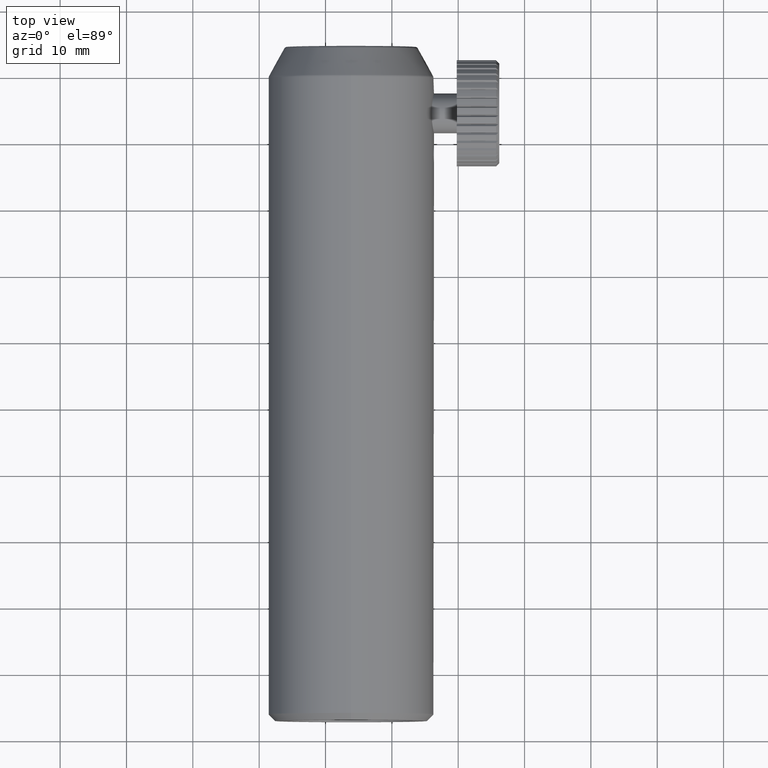
[diagram: clean part render]
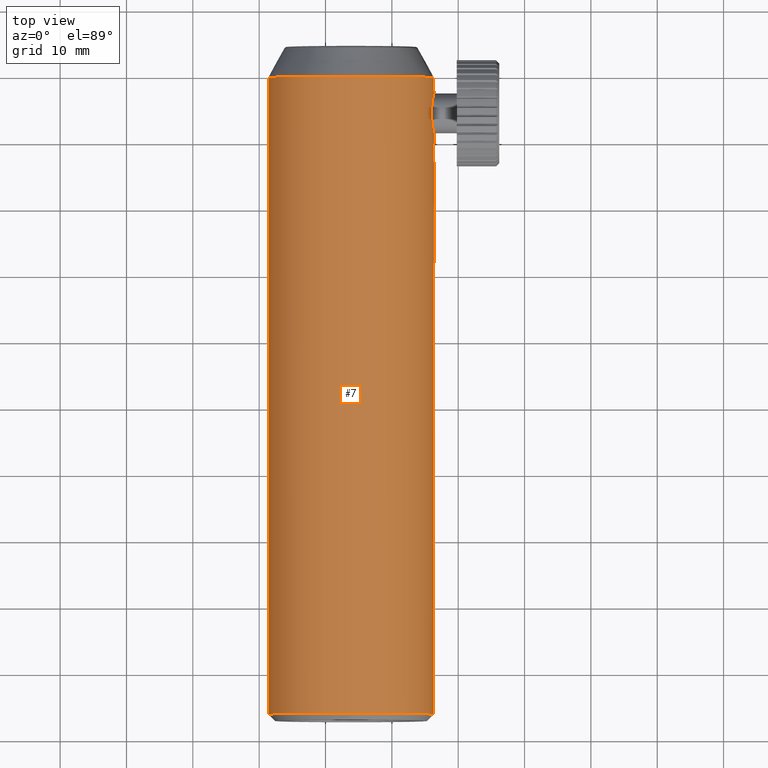
[diagram: same view with one face highlighted and labeled with its STEP entity id]
A machine part, top view. The second image highlights one B-rep face of the part: STEP entity #7.
In plain terms, the highlighted cylindrical surface (bore or boss wall) has radius 12.5 mm, axis along (-0, -1, -0).
Its self-contained STEP definition (entity closure, byte-faithful):
#7 = ADVANCED_FACE ( 'NONE', ( #4290, #4288, #4291, #4286 ), #4295, .T. ) ;
#218 = CARTESIAN_POINT ( 'NONE',  ( -6.149801035848844900, 89.85799238852061400, 12.50000000000000000 ) ) ;
#219 = CARTESIAN_POINT ( 'NONE',  ( -6.149801035848844900, -6.112444597380676500, 12.50000000000000000 ) ) ;
#220 = CARTESIAN_POINT ( 'NONE',  ( 6.259872610142013000, 78.48755540261929300, -1.500000000000001800 ) ) ;
#221 = CARTESIAN_POINT ( 'NONE',  ( 5.984860063662751800, 84.48755540261932100, 3.000000000000005300 ) ) ;
#292 = CARTESIAN_POINT ( 'NONE',  ( -6.149801035848844900, 89.85799238852061400, 5.421010862427522200E-016 ) ) ;
#293 = DIRECTION ( 'NONE',  ( 0.0000000000000000000, -1.000000000000000000, 0.0000000000000000000 ) ) ;
#294 = DIRECTION ( 'NONE',  ( 0.0000000000000000000, 0.0000000000000000000, 1.000000000000000000 ) ) ;
#295 = CARTESIAN_POINT ( 'NONE',  ( 6.259872610142013000, 78.48755540261929300, -1.500000000000001800 ) ) ;
#296 = CARTESIAN_POINT ( 'NONE',  ( -6.149801035848844900, -6.112444597380676500, 5.421010862427522200E-016 ) ) ;
#297 = DIRECTION ( 'NONE',  ( -0.0000000000000000000, 1.000000000000000000, -0.0000000000000000000 ) ) ;
#298 = DIRECTION ( 'NONE',  ( 0.0000000000000000000, 0.0000000000000000000, 1.000000000000000000 ) ) ;
#299 = CARTESIAN_POINT ( 'NONE',  ( 6.259872610142012100, 78.38836244564953400, -1.500000000000001600 ) ) ;
#300 = CARTESIAN_POINT ( 'NONE',  ( 6.261061172023147500, 78.29084510107892900, -1.490257802948910000 ) ) ;
#301 = CARTESIAN_POINT ( 'NONE',  ( 6.265583224313307800, 78.09901901123629400, -1.452102866381464800 ) ) ;
#302 = CARTESIAN_POINT ( 'NONE',  ( 6.268970210110914800, 78.00370944680059900, -1.423220524195887300 ) ) ;
#303 = CARTESIAN_POINT ( 'NONE',  ( 6.277370815684313300, 77.82210226600993500, -1.347900475714468100 ) ) ;
#304 = CARTESIAN_POINT ( 'NONE',  ( 6.282344823719955500, 77.73598244525437900, -1.301822226657947800 ) ) ;
#305 = CARTESIAN_POINT ( 'NONE',  ( 6.293261492200886500, 77.57299741451579700, -1.192973891775913000 ) ) ;
#306 = CARTESIAN_POINT ( 'NONE',  ( 6.299240806496861500, 77.49589780356458800, -1.129677166767513600 ) ) ;
#307 = CARTESIAN_POINT ( 'NONE',  ( 6.316899693580494600, 77.28855787038287400, -0.9222939321095640100 ) ) ;
#308 = CARTESIAN_POINT ( 'NONE',  ( 6.328679438238382600, 77.17682782665579600, -0.7550871261758829200 ) ) ;
#309 = CARTESIAN_POINT ( 'NONE',  ( 6.345287980852801500, 77.02715087937481500, -0.3941852039266134900 ) ) ;
#310 = CARTESIAN_POINT ( 'NONE',  ( 6.350185932587506500, 76.98766399899933800, -0.1966721861268270200 ) ) ;
#311 = CARTESIAN_POINT ( 'NONE',  ( 6.350205438598430300, 76.98750144888387600, 0.09709108478564433500 ) ) ;
#312 = CARTESIAN_POINT ( 'NONE',  ( 6.349023913998093100, 76.99725785619678200, 0.1965672230767508100 ) ) ;
#313 = CARTESIAN_POINT ( 'NONE',  ( 6.344515020274919900, 77.03555837773635100, 0.3890116833621168300 ) ) ;
#314 = CARTESIAN_POINT ( 'NONE',  ( 6.341212166069643900, 77.06389596024278900, 0.4825573475793975600 ) ) ;
#315 = CARTESIAN_POINT ( 'NONE',  ( 6.332867587298133900, 77.13907056671499200, 0.6642713669177133800 ) ) ;
#316 = CARTESIAN_POINT ( 'NONE',  ( 6.327824374716394500, 77.18599851873563000, 0.7519910857756627600 ) ) ;
#317 = CARTESIAN_POINT ( 'NONE',  ( 6.316972180214649200, 77.29451355240631500, 0.9144353770012350100 ) ) ;
#318 = CARTESIAN_POINT ( 'NONE',  ( 6.311112954035098500, 77.35652247587003700, 0.9902319564912679400 ) ) ;
#319 = CARTESIAN_POINT ( 'NONE',  ( 6.299193757832053800, 77.49643008703108600, 1.130250157198737800 ) ) ;
#320 = CARTESIAN_POINT ( 'NONE',  ( 6.293330031101859000, 77.57209426510992500, 1.192254079490199700 ) ) ;
#321 = CARTESIAN_POINT ( 'NONE',  ( 6.282441074698355400, 77.73442709997807800, 1.300898398842780000 ) ) ;
#322 = CARTESIAN_POINT ( 'NONE',  ( 6.277368967144909100, 77.82213790911129100, 1.347917362378355600 ) ) ;
#323 = CARTESIAN_POINT ( 'NONE',  ( 6.268969523861892800, 78.00372860293086300, 1.423226364416681400 ) ) ;
#324 = CARTESIAN_POINT ( 'NONE',  ( 6.265637506738246800, 78.09722246197037500, 1.451640783152932100 ) ) ;
#325 = CARTESIAN_POINT ( 'NONE',  ( 6.261079144605536900, 78.28958456286244400, 1.490110168569581500 ) ) ;
#326 = CARTESIAN_POINT ( 'NONE',  ( 6.259877047189084100, 78.38906249612182400, 1.499963291793313200 ) ) ;
#327 = CARTESIAN_POINT ( 'NONE',  ( 6.259863774041022600, 78.68285928330881500, 1.500073102091561600 ) ) ;
#328 = CARTESIAN_POINT ( 'NONE',  ( 6.264778266869466700, 78.88038538652520500, 1.460777251484217700 ) ) ;
#329 = CARTESIAN_POINT ( 'NONE',  ( 6.281447300722744500, 79.24152578551742500, 1.311378753992073600 ) ) ;
#330 = CARTESIAN_POINT ( 'NONE',  ( 6.293255431960084000, 79.40878978742775000, 1.199820136655038700 ) ) ;
#331 = CARTESIAN_POINT ( 'NONE',  ( 6.310919036325211500, 79.61640408590213300, 0.9926031121600045200 ) ) ;
#332 = CARTESIAN_POINT ( 'NONE',  ( 6.316892822264701800, 79.67977732552218100, 0.9155336314934242600 ) ) ;
#333 = CARTESIAN_POINT ( 'NONE',  ( 6.327782312873323700, 79.78871780056699900, 0.7527093449750811300 ) ) ;
#334 = CARTESIAN_POINT ( 'NONE',  ( 6.332740413405433700, 79.83486681279416100, 0.6666461557756452300 ) ) ;
#335 = CARTESIAN_POINT ( 'NONE',  ( 6.341113470749970600, 79.91035272296997500, 0.4850906288528175600 ) ) ;
#336 = CARTESIAN_POINT ( 'NONE',  ( 6.344487107921721300, 79.93931236001716900, 0.3898233760054308200 ) ) ;
#337 = CARTESIAN_POINT ( 'NONE',  ( 6.348997751691048700, 79.97763364727497000, 0.1980589625271933800 ) ) ;
#338 = CARTESIAN_POINT ( 'NONE',  ( 6.350187992601410000, 79.98746397300050100, 0.1005603776650985700 ) ) ;
#339 = CARTESIAN_POINT ( 'NONE',  ( 6.350209784851736000, 79.98764557516155100, -0.09781402405194571100 ) ) ;
#340 = CARTESIAN_POINT ( 'NONE',  ( 6.349040664557299400, 79.97799142635294300, -0.1953580908606927200 ) ) ;
#341 = CARTESIAN_POINT ( 'NONE',  ( 6.344568181894191000, 79.94000775581928100, -0.3872292424281549300 ) ) ;
#342 = CARTESIAN_POINT ( 'NONE',  ( 6.341211588201721500, 79.91120955874865200, -0.4825687799052017500 ) ) ;
#343 = CARTESIAN_POINT ( 'NONE',  ( 6.332868831318168500, 79.83605152599267300, -0.6642454281742906600 ) ) ;
#344 = CARTESIAN_POINT ( 'NONE',  ( 6.327921592742443500, 79.79004807493933500, -0.7504117923817327200 ) ) ;
#345 = CARTESIAN_POINT ( 'NONE',  ( 6.317042155983585900, 79.68133274162637700, -0.9135100899640404800 ) ) ;
#346 = CARTESIAN_POINT ( 'NONE',  ( 6.311074122915635500, 79.61810612920781700, -0.9906612363099380800 ) ) ;
#347 = CARTESIAN_POINT ( 'NONE',  ( 6.293415957238744700, 79.41091342059949900, -1.198177154138544900 ) ) ;
#348 = CARTESIAN_POINT ( 'NONE',  ( 6.281588345130294300, 79.24380284367747200, -1.310058265983520500 ) ) ;
#349 = CARTESIAN_POINT ( 'NONE',  ( 6.264865158017105500, 78.88303606675376000, -1.460054073202280200 ) ) ;
#350 = CARTESIAN_POINT ( 'NONE',  ( 6.259872610142016600, 78.68594131655882500, -1.500000000000002000 ) ) ;
#351 = CARTESIAN_POINT ( 'NONE',  ( 6.259872610142013000, 78.48755540261929300, -1.500000000000001800 ) ) ;
#353 = CARTESIAN_POINT ( 'NONE',  ( 5.984860063662751800, 84.48755540261932100, 3.000000000000005800 ) ) ;
#354 = CARTESIAN_POINT ( 'NONE',  ( 5.984860063662750000, 84.28857911025087900, 3.000000000000005300 ) ) ;
#355 = CARTESIAN_POINT ( 'NONE',  ( 5.989752526017962700, 84.09307894255638900, 2.980401679168928300 ) ) ;
#356 = CARTESIAN_POINT ( 'NONE',  ( 6.008314257206009800, 83.70869824284929500, 2.903754013585117600 ) ) ;
#357 = CARTESIAN_POINT ( 'NONE',  ( 6.022208951451666800, 83.51778198057893100, 2.845725346697516300 ) ) ;
#358 = CARTESIAN_POINT ( 'NONE',  ( 6.056485410008821900, 83.15486558218809400, 2.694912073046460900 ) ) ;
#359 = CARTESIAN_POINT ( 'NONE',  ( 6.076732470784564000, 82.98285469548604000, 2.602731912253473600 ) ) ;
#360 = CARTESIAN_POINT ( 'NONE',  ( 6.121049315360949100, 82.65731744787035500, 2.385071624523360500 ) ) ;
#361 = CARTESIAN_POINT ( 'NONE',  ( 6.145196051731773900, 82.50377700576680700, 2.258894687124602300 ) ) ;
#362 = CARTESIAN_POINT ( 'NONE',  ( 6.192657820890319800, 82.22819399405671000, 1.983246822974015400 ) ) ;
#363 = CARTESIAN_POINT ( 'NONE',  ( 6.216222680867878700, 82.10426247223668400, 1.832699956375967200 ) ) ;
#364 = CARTESIAN_POINT ( 'NONE',  ( 6.260366750444680900, 81.88490154288904000, 1.505014022706548700 ) ) ;
#365 = CARTESIAN_POINT ( 'NONE',  ( 6.280394049482387300, 81.79217271111147600, 1.331559699388170400 ) ) ;
#366 = CARTESIAN_POINT ( 'NONE',  ( 6.313753736929976800, 81.64228993726376900, 0.9708777051564082500 ) ) ;
#367 = CARTESIAN_POINT ( 'NONE',  ( 6.327283175884776500, 81.58427386506365100, 0.7810302027737270300 ) ) ;
#368 = CARTESIAN_POINT ( 'NONE',  ( 6.345511664687371900, 81.50690903919391400, 0.3934451933313346000 ) ) ;
#369 = CARTESIAN_POINT ( 'NONE',  ( 6.350169760273071300, 81.48767708546644400, 0.1983092448445306600 ) ) ;
#370 = CARTESIAN_POINT ( 'NONE',  ( 6.350227894398536000, 81.48743485990023300, -0.1946103889057414500 ) ) ;
#371 = CARTESIAN_POINT ( 'NONE',  ( 6.345469539736326300, 81.50708866395172000, -0.3942288005861714400 ) ) ;
#372 = CARTESIAN_POINT ( 'NONE',  ( 6.327357324523553000, 81.58395832777753800, -0.7795654908250736500 ) ) ;
#373 = CARTESIAN_POINT ( 'NONE',  ( 6.314085062698392600, 81.64082512991838300, -0.9669420786040929800 ) ) ;
#374 = CARTESIAN_POINT ( 'NONE',  ( 6.280469662609919000, 81.79180945670465500, -1.331091290622746800 ) ) ;
#375 = CARTESIAN_POINT ( 'NONE',  ( 6.260274096106014600, 81.88539461569391200, -1.505586124824016100 ) ) ;
#376 = CARTESIAN_POINT ( 'NONE',  ( 6.216629249376391700, 82.10220972964366100, -1.829796808580407500 ) ) ;
#377 = CARTESIAN_POINT ( 'NONE',  ( 6.192851693742148300, 82.22706036532390800, -1.982129260621104500 ) ) ;
#378 = CARTESIAN_POINT ( 'NONE',  ( 6.144959258371401700, 82.50515985614232800, -2.260261515125104200 ) ) ;
#379 = CARTESIAN_POINT ( 'NONE',  ( 6.121282089267389800, 82.65581524617881800, -2.383862308967640500 ) ) ;
#380 = CARTESIAN_POINT ( 'NONE',  ( 6.077088777362024400, 82.98003245367156900, -2.601047109767376900 ) ) ;
#381 = CARTESIAN_POINT ( 'NONE',  ( 6.056399963085020500, 83.15570083088955800, -2.695293317102767100 ) ) ;
#382 = CARTESIAN_POINT ( 'NONE',  ( 6.022210144152749600, 83.51783898018075500, -2.845714800451583800 ) ) ;
#383 = CARTESIAN_POINT ( 'NONE',  ( 6.008548842244810100, 83.70483425756113100, -2.902776904064428900 ) ) ;
#384 = CARTESIAN_POINT ( 'NONE',  ( 5.989808808624930600, 84.09093491799208700, -2.980177568009191500 ) ) ;
#385 = CARTESIAN_POINT ( 'NONE',  ( 5.984880675424948400, 84.29009652302583800, -2.999916627742443200 ) ) ;
#386 = CARTESIAN_POINT ( 'NONE',  ( 5.984819039754325900, 84.87866086162249200, -3.000165937091054500 ) ) ;
#387 = CARTESIAN_POINT ( 'NONE',  ( 6.005048413594751700, 85.27481667665027500, -2.921168117209807400 ) ) ;
#388 = CARTESIAN_POINT ( 'NONE',  ( 6.056125926075505800, 85.81684348033952900, -2.696524443998021200 ) ) ;
#389 = CARTESIAN_POINT ( 'NONE',  ( 6.076733931466963100, 85.99228431395909000, -2.602730281982853300 ) ) ;
#390 = CARTESIAN_POINT ( 'NONE',  ( 6.121097499158493000, 86.31812980593397800, -2.384829421845836800 ) ) ;
#391 = CARTESIAN_POINT ( 'NONE',  ( 6.144764863502360600, 86.46870238624696000, -2.261263662528855800 ) ) ;
#392 = CARTESIAN_POINT ( 'NONE',  ( 6.192399278233861700, 86.74554152086511700, -1.984881712349541700 ) ) ;
#393 = CARTESIAN_POINT ( 'NONE',  ( 6.216407018508646400, 86.87175418004700600, -1.831295662404106600 ) ) ;
#394 = CARTESIAN_POINT ( 'NONE',  ( 6.260084591274767800, 87.08881729733900600, -1.507144375468702800 ) ) ;
#395 = CARTESIAN_POINT ( 'NONE',  ( 6.280036911392144800, 87.18131626001157000, -1.335166770267808700 ) ) ;
#396 = CARTESIAN_POINT ( 'NONE',  ( 6.313817541215136900, 87.33312462452919100, -0.9704399335172661000 ) ) ;
#397 = CARTESIAN_POINT ( 'NONE',  ( 6.327235465345772500, 87.39062915574862700, -0.7813424471037036000 ) ) ;
#398 = CARTESIAN_POINT ( 'NONE',  ( 6.345358525535109700, 87.46755705168099800, -0.3973957817389944800 ) ) ;
#399 = CARTESIAN_POINT ( 'NONE',  ( 6.350172368952441600, 87.48744458927514200, -0.1996070343081345100 ) ) ;
#400 = CARTESIAN_POINT ( 'NONE',  ( 6.350225335574990000, 87.48766528356809100, 0.1962620762996985800 ) ) ;
#401 = CARTESIAN_POINT ( 'NONE',  ( 6.345554450857807000, 87.46837561566016500, 0.3914937937115275400 ) ) ;
#402 = CARTESIAN_POINT ( 'NONE',  ( 6.327535270105871100, 87.39191448771855200, 0.7766948163783223800 ) ) ;
#403 = CARTESIAN_POINT ( 'NONE',  ( 6.313972059075593000, 87.33378035254922600, 0.9681994951951574700 ) ) ;
#404 = CARTESIAN_POINT ( 'NONE',  ( 6.280543982403087500, 87.18363291942434000, 1.330252890046762100 ) ) ;
#405 = CARTESIAN_POINT ( 'NONE',  ( 6.260662446654436900, 87.09160013492582700, 1.502540360071170000 ) ) ;
#406 = CARTESIAN_POINT ( 'NONE',  ( 6.216672584633204900, 86.87316117964621800, 1.829634274414380100 ) ) ;
#407 = CARTESIAN_POINT ( 'NONE',  ( 6.192824846058875300, 86.74781881139782100, 1.982204652889031100 ) ) ;
#408 = CARTESIAN_POINT ( 'NONE',  ( 6.145398808385503600, 86.47257838132382800, 2.257788682984494400 ) ) ;
#409 = CARTESIAN_POINT ( 'NONE',  ( 6.121474942986157700, 86.32071920668892100, 2.382917352259177300 ) ) ;
#410 = CARTESIAN_POINT ( 'NONE',  ( 6.076870954381325500, 85.99347151598583100, 2.602114774515515100 ) ) ;
#411 = CARTESIAN_POINT ( 'NONE',  ( 6.056623295148604300, 85.82137565509201200, 2.694280220413642000 ) ) ;
#412 = CARTESIAN_POINT ( 'NONE',  ( 6.022469681938411600, 85.46041507628288500, 2.844603035113632700 ) ) ;
#413 = CARTESIAN_POINT ( 'NONE',  ( 6.008490072034864400, 85.26944466478356300, 2.903022868219078800 ) ) ;
#457 = AXIS2_PLACEMENT_3D ( 'NONE', #2776, #2777, #2771 ) ;
#1533 = EDGE_LOOP ( 'NONE', ( #4644 ) ) ;
#1534 = EDGE_LOOP ( 'NONE', ( #4645 ) ) ;
#1537 = EDGE_LOOP ( 'NONE', ( #4643 ) ) ;
#1538 = EDGE_LOOP ( 'NONE', ( #4642 ) ) ;
#1865 = EDGE_CURVE ( 'NONE', #3807, #3807, #2579, .T. ) ;
#1866 = EDGE_CURVE ( 'NONE', #3808, #3808, #2580, .T. ) ;
#1867 = EDGE_CURVE ( 'NONE', #3809, #3809, #4027, .T. ) ;
#1868 = EDGE_CURVE ( 'NONE', #3810, #3810, #4028, .T. ) ;
#2579 = CIRCLE ( 'NONE', #4476, 12.50000000000000000 ) ;
#2580 = CIRCLE ( 'NONE', #4477, 12.50000000000000000 ) ;
#2771 = DIRECTION ( 'NONE',  ( 0.0000000000000000000, 0.0000000000000000000, -1.000000000000000000 ) ) ;
#2776 = CARTESIAN_POINT ( 'NONE',  ( -6.149801035848844900, 94.48755540261930700, 5.421010862427522200E-016 ) ) ;
#2777 = DIRECTION ( 'NONE',  ( -0.0000000000000000000, -1.000000000000000000, -0.0000000000000000000 ) ) ;
#2982 = CARTESIAN_POINT ( 'NONE',  ( 5.989754913484308200, 84.88268424392755700, 2.980396918273984700 ) ) ;
#2983 = CARTESIAN_POINT ( 'NONE',  ( 5.984860063662753600, 84.68653169498776400, 3.000000000000006200 ) ) ;
#2984 = CARTESIAN_POINT ( 'NONE',  ( 5.984860063662751800, 84.48755540261932100, 3.000000000000005800 ) ) ;
#3807 = VERTEX_POINT ( 'NONE', #218 ) ;
#3808 = VERTEX_POINT ( 'NONE', #219 ) ;
#3809 = VERTEX_POINT ( 'NONE', #220 ) ;
#3810 = VERTEX_POINT ( 'NONE', #221 ) ;
#4027 = B_SPLINE_CURVE_WITH_KNOTS ( 'NONE', 3,
 ( #295, #299, #300, #301, #302, #303, #304, #305, #306, #307, #308, #309, #310, #311, #312, #313, #314, #315, #316, #317, #318, #319, #320, #321, #322, #323, #324, #325, #326, #327, #328, #329, #330, #331, #332, #333, #334, #335, #336, #337, #338, #339, #340, #341, #342, #343, #344, #345, #346, #347, #348, #349, #350, #351 ),
 .UNSPECIFIED., .T., .F.,
 ( 4, 2, 2, 2, 2, 2, 2, 2, 2, 2, 2, 2, 2, 2, 2, 2, 2, 2, 2, 2, 2, 2, 2, 2, 2, 2, 4 ),
 ( 0.0000000000000000000, 0.0002933343598692891200, 0.0005866687197385782400, 0.0008800030796078673600, 0.001173337439477156500, 0.001760006159215734700, 0.002346674878954313000, 0.002640009238823602400, 0.002933343598692891400, 0.003226677958562180400, 0.003520012318431469400, 0.003813346678300758900, 0.004106681038170047900, 0.004400015398039336900, 0.004693349757908625900, 0.005280018477647162300, 0.005866687197385699600, 0.006160021557254982500, 0.006453355917124264600, 0.006746690276993547500, 0.007040024636862831300, 0.007333358996732114300, 0.007626693356601396300, 0.007920027716470679300, 0.008213362076339962200, 0.008800030796078528100, 0.009386699515817094000 ),
 .UNSPECIFIED. ) ;
#4028 = B_SPLINE_CURVE_WITH_KNOTS ( 'NONE', 3,
 ( #353, #354, #355, #356, #357, #358, #359, #360, #361, #362, #363, #364, #365, #366, #367, #368, #369, #370, #371, #372, #373, #374, #375, #376, #377, #378, #379, #380, #381, #382, #383, #384, #385, #386, #387, #388, #389, #390, #391, #392, #393, #394, #395, #396, #397, #398, #399, #400, #401, #402, #403, #404, #405, #406, #407, #408, #409, #410, #411, #412, #413, #2982, #2983, #2984 ),
 .UNSPECIFIED., .T., .F.,
 ( 4, 2, 2, 2, 2, 2, 2, 2, 2, 2, 2, 2, 2, 2, 2, 2, 2, 2, 2, 2, 2, 2, 2, 2, 2, 2, 2, 2, 2, 2, 2, 4 ),
 ( 0.0000000000000000000, 0.0005882810348985980800, 0.001176562069797196200, 0.001764843104695794400, 0.002353124139594392300, 0.002941405174492991500, 0.003529686209391591100, 0.004117967244290189800, 0.004706248279188789000, 0.005294529314087389000, 0.005882810348985987300, 0.006471091383884585600, 0.007059372418783184700, 0.007647653453681782200, 0.008235934488580379600, 0.008824215523478977000, 0.009412496558377576200, 0.01058905862817477600, 0.01117733966307335300, 0.01176562069797193300, 0.01235390173287051300, 0.01294218276776909300, 0.01353046380266767100, 0.01411874483756625000, 0.01470702587246483000, 0.01529530690736340800, 0.01588358794226198800, 0.01647186897716056800, 0.01706015001205914800, 0.01764843104695772500, 0.01823671208185630500, 0.01882499311675488500 ),
 .UNSPECIFIED. ) ;
#4286 = FACE_BOUND ( 'NONE', #1538, .T. ) ;
#4288 = FACE_BOUND ( 'NONE', #1533, .T. ) ;
#4290 = FACE_OUTER_BOUND ( 'NONE', #1534, .T. ) ;
#4291 = FACE_OUTER_BOUND ( 'NONE', #1537, .T. ) ;
#4295 = CYLINDRICAL_SURFACE ( 'NONE', #457, 12.50000000000000000 ) ;
#4476 = AXIS2_PLACEMENT_3D ( 'NONE', #292, #293, #294 ) ;
#4477 = AXIS2_PLACEMENT_3D ( 'NONE', #296, #297, #298 ) ;
#4642 = ORIENTED_EDGE ( 'NONE', *, *, #1868, .F. ) ;
#4643 = ORIENTED_EDGE ( 'NONE', *, *, #1865, .T. ) ;
#4644 = ORIENTED_EDGE ( 'NONE', *, *, #1867, .T. ) ;
#4645 = ORIENTED_EDGE ( 'NONE', *, *, #1866, .T. ) ;